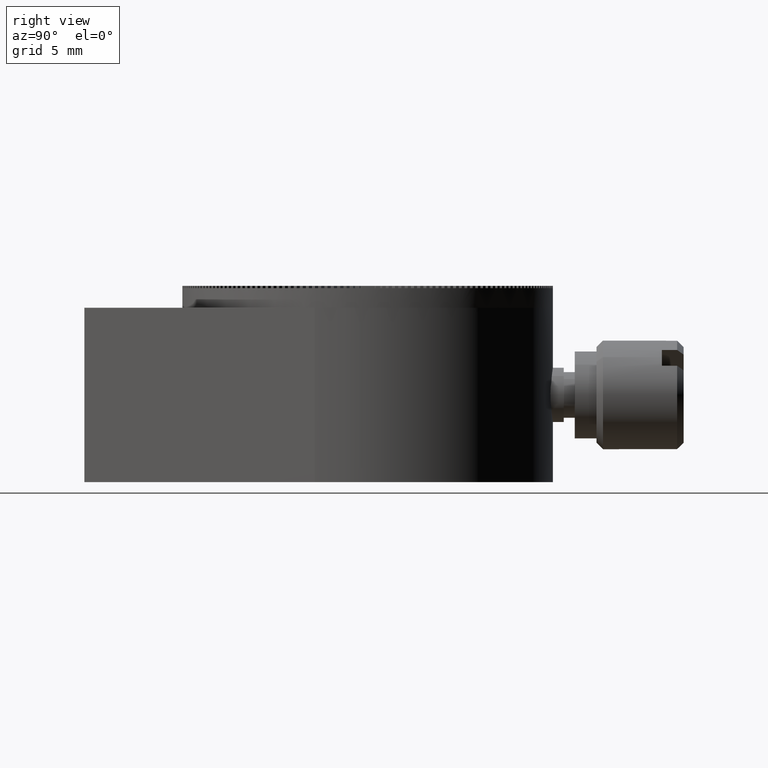
[diagram: clean part render]
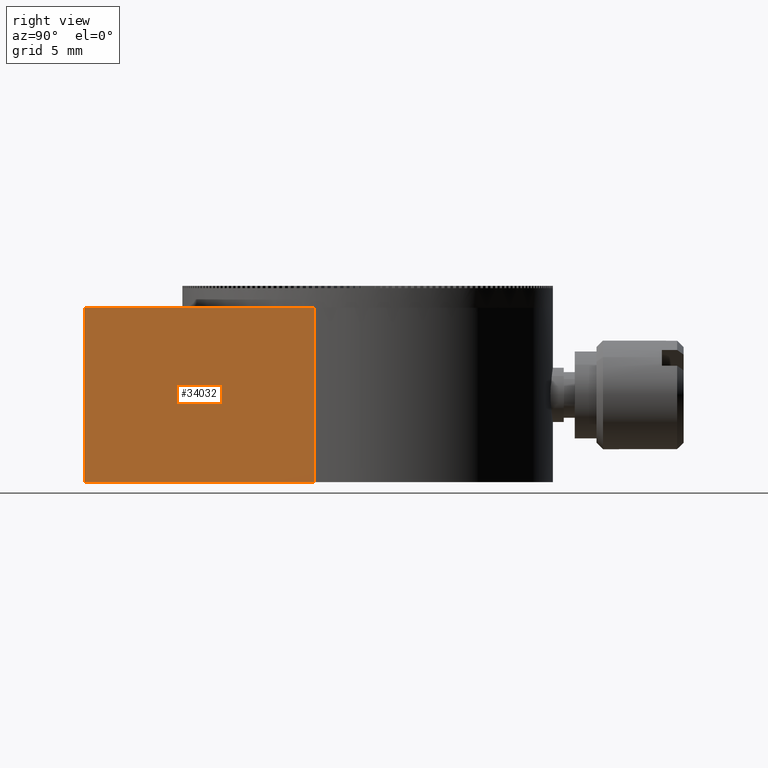
[diagram: same view with one face highlighted and labeled with its STEP entity id]
A machine part, right view. The second image highlights one B-rep face of the part: STEP entity #34032.
In plain terms, the highlighted planar face has unit normal (-0.9585, 0.2852, 0).
Its self-contained STEP definition (entity closure, byte-faithful):
#70 = CARTESIAN_POINT ( 'NONE',  ( 5.000000000000001776, 0.000000000000000000, 12.99999999999999822 ) ) ;
#633 = FACE_OUTER_BOUND ( 'NONE', #60277, .T. ) ;
#1826 = CARTESIAN_POINT ( 'NONE',  ( 8.146965083051258105, 8.000000000000000000, 2.424244198826441821 ) ) ;
#2238 = CARTESIAN_POINT ( 'NONE',  ( 8.146965083051258105, 0.000000000000000000, 2.424244198826441821 ) ) ;
#2893 = CARTESIAN_POINT ( 'NONE',  ( 8.146965083051258105, 8.000000000000000000, 2.424244198826441821 ) ) ;
#4135 = VERTEX_POINT ( 'NONE', #6535 ) ;
#6535 = CARTESIAN_POINT ( 'NONE',  ( 8.146965083051258105, 8.000000000000000000, 2.424244198826441821 ) ) ;
#9176 = CARTESIAN_POINT ( 'NONE',  ( 5.000000000000001776, 8.000000000000000000, 12.99999999999999822 ) ) ;
#10809 = CARTESIAN_POINT ( 'NONE',  ( 5.000000000000001776, 8.000000000000000000, 12.99999999999999822 ) ) ;
#11618 = ORIENTED_EDGE ( 'NONE', *, *, #29628, .F. ) ;
#11981 = CARTESIAN_POINT ( 'NONE',  ( 8.146965083051258105, 0.000000000000000000, 2.424244198826441821 ) ) ;
#13003 = VERTEX_POINT ( 'NONE', #70 ) ;
#14620 = DIRECTION ( 'NONE',  ( -0.000000000000000000, -1.000000000000000000, -0.000000000000000000 ) ) ;
#15097 = DIRECTION ( 'NONE',  ( -0.9584664803589711957, 0.000000000000000000, -0.2852051998619342665 ) ) ;
#15718 = DIRECTION ( 'NONE',  ( -0.2852051998619342665, 0.000000000000000000, 0.9584664803589711957 ) ) ;
#22263 = VECTOR ( 'NONE', #14620, 1000.000000000000000 ) ;
#22378 = DIRECTION ( 'NONE',  ( 0.2852051998619342665, -0.000000000000000000, -0.9584664803589711957 ) ) ;
#23093 = LINE ( 'NONE', #2893, #60451 ) ;
#26534 = LINE ( 'NONE', #1826, #56284 ) ;
#28482 = EDGE_CURVE ( 'NONE', #63141, #4135, #26534, .T. ) ;
#29628 = EDGE_CURVE ( 'NONE', #4135, #35146, #23093, .T. ) ;
#34032 = ADVANCED_FACE ( 'NONE', ( #633 ), #54846, .F. ) ;
#35017 = ORIENTED_EDGE ( 'NONE', *, *, #41859, .T. ) ;
#35146 = VERTEX_POINT ( 'NONE', #2238 ) ;
#41859 = EDGE_CURVE ( 'NONE', #63141, #13003, #57945, .T. ) ;
#43660 = VECTOR ( 'NONE', #57230, 1000.000000000000000 ) ;
#46963 = LINE ( 'NONE', #11981, #43660 ) ;
#48434 = AXIS2_PLACEMENT_3D ( 'NONE', #49100, #15097, #15718 ) ;
#49100 = CARTESIAN_POINT ( 'NONE',  ( 8.146965083051258105, 8.000000000000000000, 2.424244198826441821 ) ) ;
#53790 = ORIENTED_EDGE ( 'NONE', *, *, #28482, .F. ) ;
#54846 = PLANE ( 'NONE',  #48434 ) ;
#56284 = VECTOR ( 'NONE', #22378, 1000.000000000000000 ) ;
#57230 = DIRECTION ( 'NONE',  ( 0.2852051998619342665, -0.000000000000000000, -0.9584664803589711957 ) ) ;
#57945 = LINE ( 'NONE', #9176, #22263 ) ;
#58055 = DIRECTION ( 'NONE',  ( -0.000000000000000000, -1.000000000000000000, -0.000000000000000000 ) ) ;
#59635 = EDGE_CURVE ( 'NONE', #13003, #35146, #46963, .T. ) ;
#60277 = EDGE_LOOP ( 'NONE', ( #62963, #11618, #53790, #35017 ) ) ;
#60451 = VECTOR ( 'NONE', #58055, 1000.000000000000000 ) ;
#62963 = ORIENTED_EDGE ( 'NONE', *, *, #59635, .T. ) ;
#63141 = VERTEX_POINT ( 'NONE', #10809 ) ;